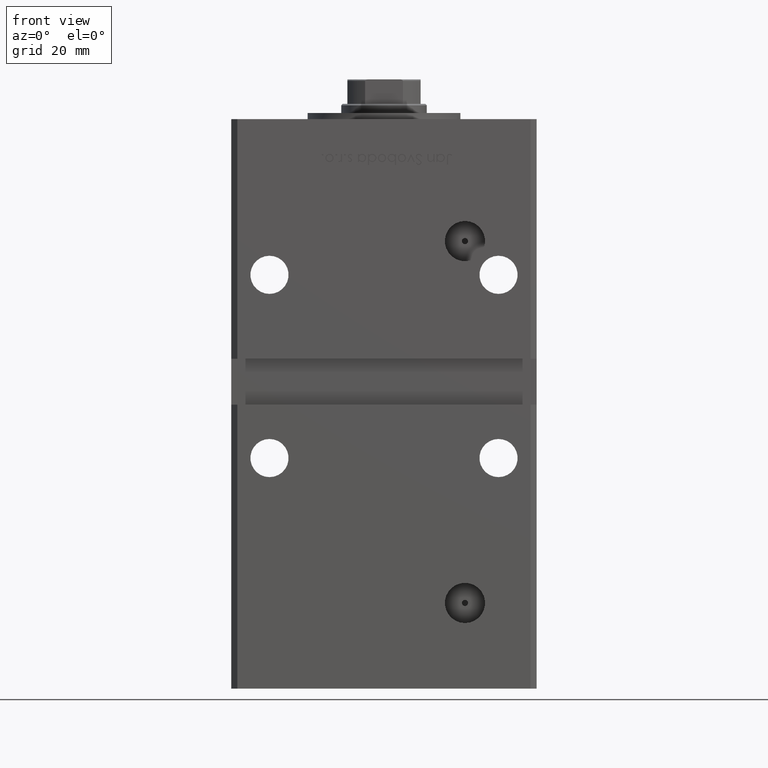
[diagram: clean part render]
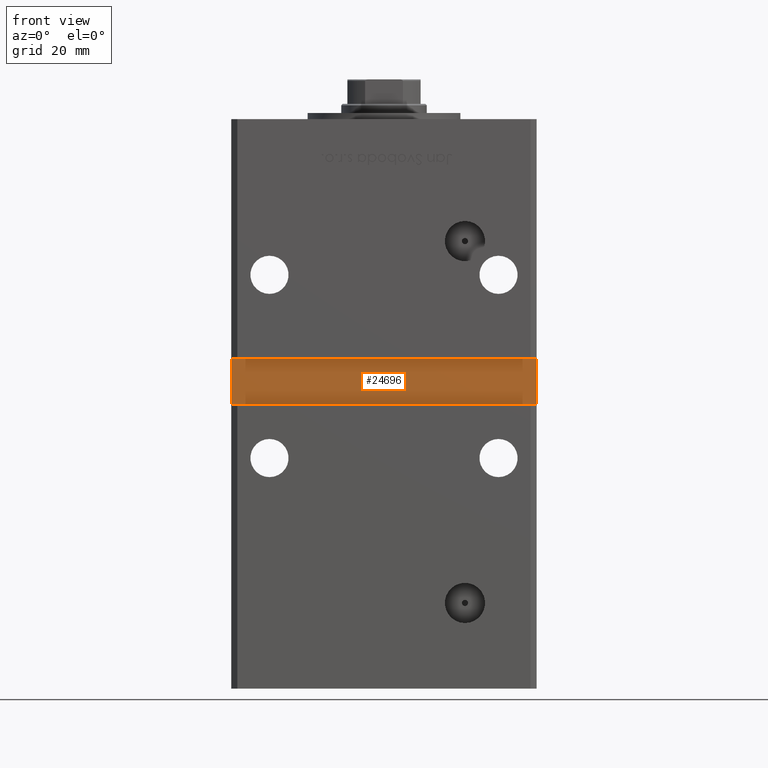
[diagram: same view with one face highlighted and labeled with its STEP entity id]
A machine part, front view. The second image highlights one B-rep face of the part: STEP entity #24696.
In plain terms, the highlighted planar face has unit normal (0, -1, 0).
Its self-contained STEP definition (entity closure, byte-faithful):
#1169 = EDGE_LOOP ( 'NONE', ( #2414, #5657, #7059, #48819 ) ) ;
#1475 = LINE ( 'NONE', #49863, #30934 ) ;
#2414 = ORIENTED_EDGE ( 'NONE', *, *, #5382, .T. ) ;
#2861 = EDGE_CURVE ( 'NONE', #26548, #10013, #15461, .T. ) ;
#3373 = DIRECTION ( 'NONE',  ( 0.000000000000000000, 0.000000000000000000, -1.000000000000000000 ) ) ;
#4496 = AXIS2_PLACEMENT_3D ( 'NONE', #27242, #10831, #43646 ) ;
#5382 = EDGE_CURVE ( 'NONE', #18793, #13913, #33072, .T. ) ;
#5657 = ORIENTED_EDGE ( 'NONE', *, *, #17017, .T. ) ;
#6179 = EDGE_CURVE ( 'NONE', #10013, #18793, #1475, .T. ) ;
#7059 = ORIENTED_EDGE ( 'NONE', *, *, #2861, .T. ) ;
#7809 = CARTESIAN_POINT ( 'NONE',  ( 49.99999999999998579, -38.50000000000000000, 89.00000000000000000 ) ) ;
#10013 = VERTEX_POINT ( 'NONE', #48533 ) ;
#10110 = CARTESIAN_POINT ( 'NONE',  ( -49.99999999999998579, -38.50000000000000000, 89.00000000000000000 ) ) ;
#10831 = DIRECTION ( 'NONE',  ( 0.000000000000000000, -1.000000000000000000, 0.000000000000000000 ) ) ;
#11375 = VECTOR ( 'NONE', #16819, 1000.000000000000000 ) ;
#12001 = LINE ( 'NONE', #32704, #11375 ) ;
#12024 = VECTOR ( 'NONE', #33338, 1000.000000000000000 ) ;
#13038 = DIRECTION ( 'NONE',  ( 1.000000000000000000, 0.000000000000000000, 0.000000000000000000 ) ) ;
#13913 = VERTEX_POINT ( 'NONE', #30220 ) ;
#15461 = LINE ( 'NONE', #32661, #31683 ) ;
#16819 = DIRECTION ( 'NONE',  ( -1.000000000000000000, -0.000000000000000000, -0.000000000000000000 ) ) ;
#17017 = EDGE_CURVE ( 'NONE', #13913, #26548, #12001, .T. ) ;
#18793 = VERTEX_POINT ( 'NONE', #21012 ) ;
#21012 = CARTESIAN_POINT ( 'NONE',  ( 49.99999999999998579, -38.49999999999999289, 74.00000000000000000 ) ) ;
#24274 = FACE_OUTER_BOUND ( 'NONE', #1169, .T. ) ;
#24696 = ADVANCED_FACE ( 'NONE', ( #24274 ), #48461, .T. ) ;
#26548 = VERTEX_POINT ( 'NONE', #10110 ) ;
#27242 = CARTESIAN_POINT ( 'NONE',  ( 0.000000000000000000, -38.50000000000000000, 0.000000000000000000 ) ) ;
#30220 = CARTESIAN_POINT ( 'NONE',  ( 49.99999999999998579, -38.50000000000000000, 89.00000000000000000 ) ) ;
#30934 = VECTOR ( 'NONE', #13038, 1000.000000000000000 ) ;
#31683 = VECTOR ( 'NONE', #3373, 1000.000000000000000 ) ;
#32661 = CARTESIAN_POINT ( 'NONE',  ( -49.99999999999998579, -38.50000000000000000, 89.00000000000000000 ) ) ;
#32704 = CARTESIAN_POINT ( 'NONE',  ( -49.99999999999998579, -38.50000000000000000, 89.00000000000000000 ) ) ;
#33072 = LINE ( 'NONE', #7809, #12024 ) ;
#33338 = DIRECTION ( 'NONE',  ( -0.000000000000000000, -0.000000000000000000, 1.000000000000000000 ) ) ;
#43646 = DIRECTION ( 'NONE',  ( 0.000000000000000000, -0.000000000000000000, -1.000000000000000000 ) ) ;
#48461 = PLANE ( 'NONE',  #4496 ) ;
#48533 = CARTESIAN_POINT ( 'NONE',  ( -49.99999999999998579, -38.50000000000000000, 74.00000000000000000 ) ) ;
#48819 = ORIENTED_EDGE ( 'NONE', *, *, #6179, .T. ) ;
#49863 = CARTESIAN_POINT ( 'NONE',  ( -49.99999999999998579, -38.50000000000000000, 74.00000000000000000 ) ) ;